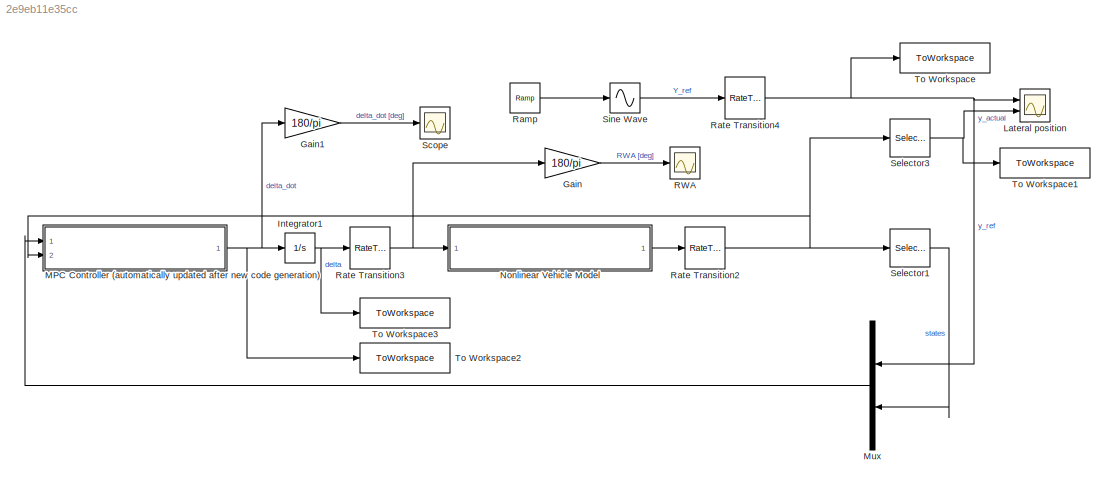
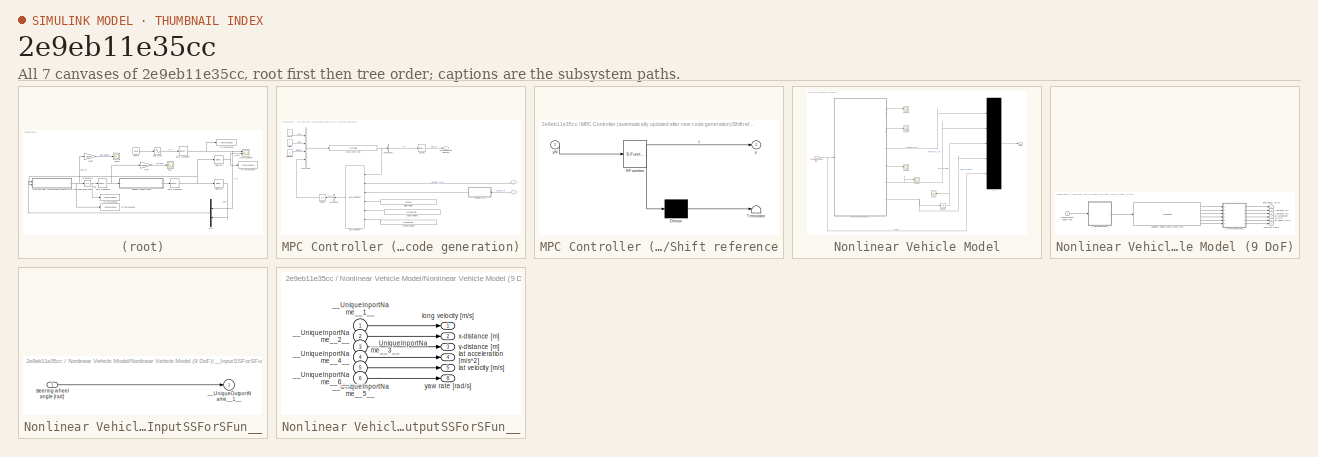
[diagram: thumbnail index - all 7 canvases of the model, root first then tree order]
MODEL slx_2e9eb11e35cc
KIND model
CONFIG AbsTol = auto
CONFIG EnableMultiTasking = off
CONFIG FixedStep = 1e-3
CONFIG MaxStep = auto
CONFIG MinStep = auto
CONFIG RelTol = 1e-3
CONFIG SampleTimeConstraint = Unconstrained
CONFIG Solver = ode4
CONFIG SolverName = ode4
CONFIG StartTime = 0.0
CONFIG StopTime = 30
BLOCK [Gain] Gain
  Gain = 180/pi
BLOCK [Gain] Gain1
  Gain = 180/pi
BLOCK [Integrator] Integrator1
  Ports = [1, 1]
BLOCK [Scope] Lateral position
  Floating = off
  NumInputPorts = 2
  Ports = [2]
  ScopeSpecificationString = Simulink.scopes.TimeScopeBlockCfg('CurrentConfiguration', extmgr.ConfigurationSet(extmgr.Configuration('Core','General UI',true),extmgr.Configuration('Core','Source UI',true),extmgr.Configuration('Sources','WiredSimulink',true,'DataLoggingVariableName','yref_vs_yactual','DataLogging',true),extmgr.Configuration('Visuals','Time Domain',true,'SerializedDisplays',{struct('MinYLimReal','-1.26772','MaxY...<+1570ch>
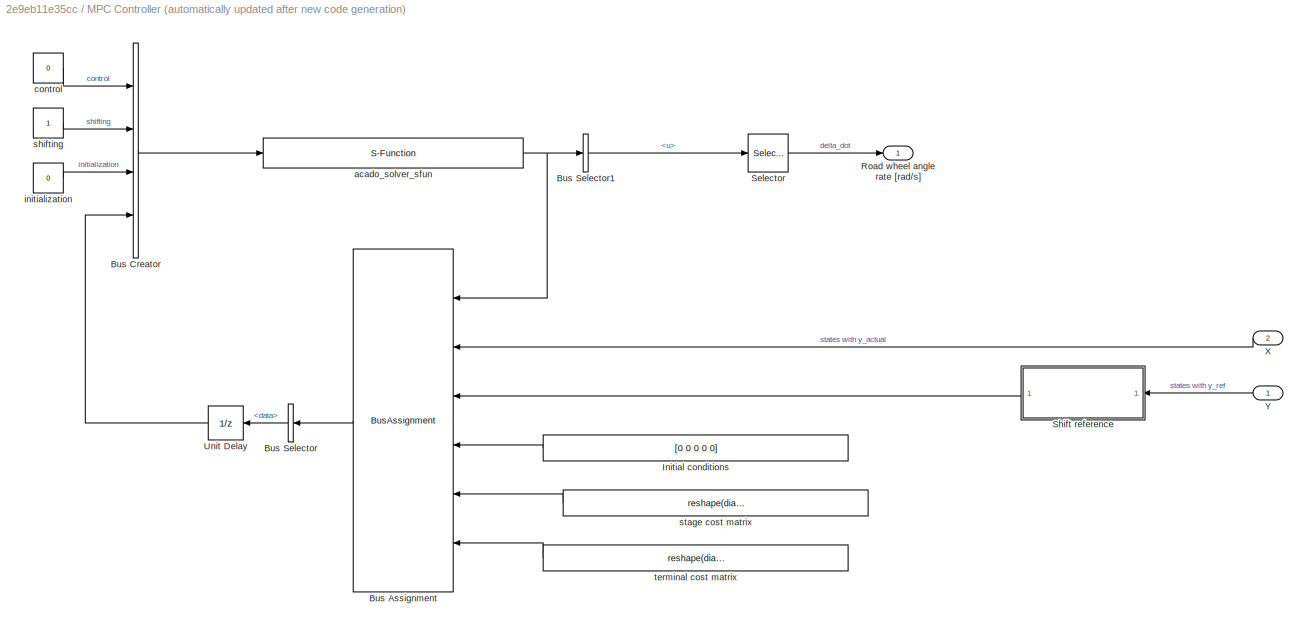
BLOCK [SubSystem] MPC Controller (automatically updated after new code generation)
  Ports = [2, 1]
  RequestExecContextInheritance = off
BLOCK [BusAssignment] MPC Controller (automatically updated after new code generation)/Bus Assignment
  AssignedSignals = data.x0,data.y,data.yN,data.W,data.WN
  Ports = [6, 1]
BLOCK [BusCreator] MPC Controller (automatically updated after new code generation)/Bus Creator
  DisplayOption = bar
  InheritFromInputs = on
  Inputs = 4
  OutDataTypeStr = Bus: ACADOinput
  Ports = [4, 1]
BLOCK [BusSelector] MPC Controller (automatically updated after new code generation)/Bus Selector
  OutputSignals = data
  Ports = [1, 1]
BLOCK [BusSelector] MPC Controller (automatically updated after new code generation)/Bus Selector1
  OutputSignals = data.u
  Ports = [1, 1]
BLOCK [Constant] MPC Controller (automatically updated after new code generation)/Initial conditions
  Value = [0 0 0 0 0]
BLOCK [Outport] MPC Controller (automatically updated after new code generation)/Road wheel angle rate [rad//s]
BLOCK [Selector] MPC Controller (automatically updated after new code generation)/Selector
  IndexOptions = Starting index (dialog)
  Indices = [1]
  InputPortWidth = Np
  OutputSizes = 1
  Ports = [1, 1]
BLOCK [SubSystem] MPC Controller (automatically updated after new code generation)/Shift reference
  ErrorFcn = Stateflow.Translate.translate
  PermitHierarchicalResolution = ExplicitOnly
  Ports = [1, 1]
  RequestExecContextInheritance = off
  SFBlockType = MATLAB Function
  TreatAsAtomicUnit = on
BLOCK [Demux] MPC Controller (automatically updated after new code generation)/Shift reference/ Demux 
  Outputs = 1
  Ports = [1, 1]
BLOCK [S-Function] MPC Controller (automatically updated after new code generation)/Shift reference/ SFunction 
  EnableBusSupport = on
  FunctionName = sf_sfun
  Parameters = Np
  PortCounts = [1 2]
  Ports = [1, 2]
  SFcnIsStateOwnerBlock = off
  SFunctionDeploymentMode = off
  Tag = Stateflow S-Function 2
BLOCK [Terminator] MPC Controller (automatically updated after new code generation)/Shift reference/ Terminator 
BLOCK [Outport] MPC Controller (automatically updated after new code generation)/Shift reference/y
  VectorParamsAs1DForOutWhenUnconnected = off
BLOCK [Inport] MPC Controller (automatically updated after new code generation)/Shift reference/yN
BLOCK [UnitDelay] MPC Controller (automatically updated after new code generation)/Unit Delay
  HasFrameUpgradeWarning = on
  InitialCondition = init
  SampleTime = Ts
BLOCK [Inport] MPC Controller (automatically updated after new code generation)/X
  Port = 2
BLOCK [Inport] MPC Controller (automatically updated after new code generation)/Y
BLOCK [S-Function] MPC Controller (automatically updated after new code generation)/acado_solver_sfun
  EnableBusSupport = off
  FunctionName = acado_solver_sfun
  Ports = [1, 1]
  SFcnIsStateOwnerBlock = off
  SFunctionDeploymentMode = off
BLOCK [Constant] MPC Controller (automatically updated after new code generation)/control
  OutDataTypeStr = int32
  Value = 0
BLOCK [Constant] MPC Controller (automatically updated after new code generation)/initialization
  OutDataTypeStr = int32
  Value = 0
BLOCK [Constant] MPC Controller (automatically updated after new code generation)/shifting
  OutDataTypeStr = int32
BLOCK [Constant] MPC Controller (automatically updated after new code generation)/stage cost matrix
  Value = reshape(diag([1.5 0 9 0 0.02 0.0001]),1,length(input.W)^2)
BLOCK [Constant] MPC Controller (automatically updated after new code generation)/terminal cost matrix
  Value = reshape(diag([0 0 0 0 0]),1,length(input.WN)^2)
BLOCK [Mux] Mux
  DisplayOption = bar
  Inputs = 2
  Ports = [2, 1]
BLOCK [SubSystem] Nonlinear Vehicle Model
  Ports = [1, 1]
  RequestExecContextInheritance = off
BLOCK [Integrator] Nonlinear Vehicle Model/Integrator
  Ports = [1, 1]
BLOCK [Mux] Nonlinear Vehicle Model/Mux
  DisplayOption = signals
  Inputs = 5
  Ports = [5, 1]
BLOCK [SubSystem] Nonlinear Vehicle Model/Nonlinear Vehicle Model (9 DoF)
  Ports = [1, 6]
  RequestExecContextInheritance = off
BLOCK [S-Function] Nonlinear Vehicle Model/Nonlinear Vehicle Model (9 DoF)/Nonlinear Vehicle Model (9 DoF)_sfcn
  CopyFcn = if ~strcmp(get_param(gcb,'Linkstatus'),'none') && ...\n~strcmp(get_param(gcb,'Linkstatus'),'implicit')      \n  set_param(gcb,'LinkStatus','none');                \nend
  EnableBusSupport = off
  FunctionName = Nonlinear_sf
  Ports = [1, 6]
  SFcnIsStateOwnerBlock = off
  SFunctionDeploymentMode = off
BLOCK [SubSystem] Nonlinear Vehicle Model/Nonlinear Vehicle Model (9 DoF)/__InputSSForSFun__
  PermitHierarchicalResolution = ExplicitOnly
  Ports = [1, 1]
  RequestExecContextInheritance = off
BLOCK [Outport] Nonlinear Vehicle Model/Nonlinear Vehicle Model (9 DoF)/__InputSSForSFun__/__UniqueOutportName__1__
BLOCK [Inport] Nonlinear Vehicle Model/Nonlinear Vehicle Model (9 DoF)/__InputSSForSFun__/steering wheel angle [rad]
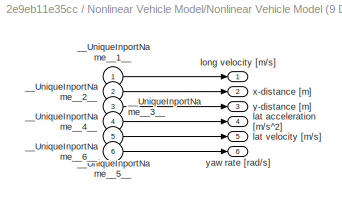
BLOCK [SubSystem] Nonlinear Vehicle Model/Nonlinear Vehicle Model (9 DoF)/__OutputSSForSFun__
  PermitHierarchicalResolution = ExplicitOnly
  Ports = [6, 6]
  RequestExecContextInheritance = off
BLOCK [Inport] Nonlinear Vehicle Model/Nonlinear Vehicle Model (9 DoF)/__OutputSSForSFun__/__UniqueInportName__1__
BLOCK [Inport] Nonlinear Vehicle Model/Nonlinear Vehicle Model (9 DoF)/__OutputSSForSFun__/__UniqueInportName__2__
  Port = 2
BLOCK [Inport] Nonlinear Vehicle Model/Nonlinear Vehicle Model (9 DoF)/__OutputSSForSFun__/__UniqueInportName__3__
  Port = 3
BLOCK [Inport] Nonlinear Vehicle Model/Nonlinear Vehicle Model (9 DoF)/__OutputSSForSFun__/__UniqueInportName__4__
  Port = 4
BLOCK [Inport] Nonlinear Vehicle Model/Nonlinear Vehicle Model (9 DoF)/__OutputSSForSFun__/__UniqueInportName__5__
  Port = 5
BLOCK [Inport] Nonlinear Vehicle Model/Nonlinear Vehicle Model (9 DoF)/__OutputSSForSFun__/__UniqueInportName__6__
  Port = 6
BLOCK [Outport] Nonlinear Vehicle Model/Nonlinear Vehicle Model (9 DoF)/__OutputSSForSFun__/lat acceleration [m//s^2]
  Port = 4
  VectorParamsAs1DForOutWhenUnconnected = off
BLOCK [Outport] Nonlinear Vehicle Model/Nonlinear Vehicle Model (9 DoF)/__OutputSSForSFun__/lat velocity [m//s]
  Port = 5
  VectorParamsAs1DForOutWhenUnconnected = off
BLOCK [Outport] Nonlinear Vehicle Model/Nonlinear Vehicle Model (9 DoF)/__OutputSSForSFun__/long velocity [m//s]
  VectorParamsAs1DForOutWhenUnconnected = off
BLOCK [Outport] Nonlinear Vehicle Model/Nonlinear Vehicle Model (9 DoF)/__OutputSSForSFun__/x-distance [m]
  Port = 2
  VectorParamsAs1DForOutWhenUnconnected = off
BLOCK [Outport] Nonlinear Vehicle Model/Nonlinear Vehicle Model (9 DoF)/__OutputSSForSFun__/y-distance [m]
  Port = 3
  VectorParamsAs1DForOutWhenUnconnected = off
BLOCK [Outport] Nonlinear Vehicle Model/Nonlinear Vehicle Model (9 DoF)/__OutputSSForSFun__/yaw rate [rad//s]
  Port = 6
  VectorParamsAs1DForOutWhenUnconnected = off
BLOCK [Outport] Nonlinear Vehicle Model/Nonlinear Vehicle Model (9 DoF)/lat acceleration [m//s^2]
  Port = 4
  VectorParamsAs1DForOutWhenUnconnected = off
BLOCK [Outport] Nonlinear Vehicle Model/Nonlinear Vehicle Model (9 DoF)/lat velocity [m//s]
  Port = 5
  VectorParamsAs1DForOutWhenUnconnected = off
BLOCK [Outport] Nonlinear Vehicle Model/Nonlinear Vehicle Model (9 DoF)/long velocity [m//s]
  VectorParamsAs1DForOutWhenUnconnected = off
BLOCK [Inport] Nonlinear Vehicle Model/Nonlinear Vehicle Model (9 DoF)/steering wheel angle [rad]
BLOCK [Outport] Nonlinear Vehicle Model/Nonlinear Vehicle Model (9 DoF)/x-distance [m]
  Port = 2
  VectorParamsAs1DForOutWhenUnconnected = off
BLOCK [Outport] Nonlinear Vehicle Model/Nonlinear Vehicle Model (9 DoF)/y-distance [m]
  Port = 3
  VectorParamsAs1DForOutWhenUnconnected = off
BLOCK [Outport] Nonlinear Vehicle Model/Nonlinear Vehicle Model (9 DoF)/yaw rate [rad//s]
  Port = 6
  VectorParamsAs1DForOutWhenUnconnected = off
BLOCK [Inport] Nonlinear Vehicle Model/Road wheel angle [rad]
BLOCK [Scope] Nonlinear Vehicle Model/Scope
  Floating = off
  NumInputPorts = 1
  Ports = [1]
  ScopeSpecificationString = Simulink.scopes.TimeScopeBlockCfg('CurrentConfiguration', extmgr.ConfigurationSet(extmgr.Configuration('Core','General UI',true),extmgr.Configuration('Core','Source UI',true),extmgr.Configuration('Sources','WiredSimulink',true,'DataLoggingVariableName','ScopeData1'),extmgr.Configuration('Visuals','Time Domain',true,'SerializedDisplays',{struct('MinYLimReal','-0.1412','MaxYLimReal','0.13683','YLabe...<+1407ch>
BLOCK [Scope] Nonlinear Vehicle Model/Scope1
  Floating = off
  NumInputPorts = 1
  Ports = [1]
  ScopeSpecificationString = Simulink.scopes.TimeScopeBlockCfg('CurrentConfiguration', extmgr.ConfigurationSet(extmgr.Configuration('Core','General UI',true),extmgr.Configuration('Core','Source UI',true),extmgr.Configuration('Sources','WiredSimulink',true,'DataLoggingVariableName','long_Vx','DataLogging',true),extmgr.Configuration('Visuals','Time Domain',true,'SerializedDisplays',{struct('MinYLimReal','27.47243','MaxYLimReal'...<+1507ch>
BLOCK [Scope] Nonlinear Vehicle Model/Scope2
  Floating = off
  NumInputPorts = 1
  Ports = [1]
  ScopeSpecificationString = Simulink.scopes.TimeScopeBlockCfg('CurrentConfiguration', extmgr.ConfigurationSet(extmgr.Configuration('Core','General UI',true),extmgr.Configuration('Core','Source UI',true),extmgr.Configuration('Sources','WiredSimulink',true,'DataLoggingVariableName','ScopeData2'),extmgr.Configuration('Visuals','Time Domain',true,'SerializedDisplays',{struct('MinYLimReal','-6.46577','MaxYLimReal','6.36238','YLab...<+1392ch>
BLOCK [Scope] Nonlinear Vehicle Model/Scope3
  Floating = off
  NumInputPorts = 1
  Ports = [1]
  ScopeSpecificationString = Simulink.scopes.TimeScopeBlockCfg('CurrentConfiguration', extmgr.ConfigurationSet(extmgr.Configuration('Core','General UI',true),extmgr.Configuration('Core','Source UI',true),extmgr.Configuration('Sources','WiredSimulink',true,'DataLoggingVariableName','ScopeData1'),extmgr.Configuration('Visuals','Time Domain',true),extmgr.Configuration('Tools','Plot Navigation',true),extmgr.Configuration('Tools',...<+40ch>
BLOCK [Scope] Nonlinear Vehicle Model/Scope5
  Floating = off
  NumInputPorts = 1
  Ports = [1]
  ScopeSpecificationString = Simulink.scopes.TimeScopeBlockCfg('CurrentConfiguration', extmgr.ConfigurationSet(extmgr.Configuration('Core','General UI',true),extmgr.Configuration('Core','Source UI',true),extmgr.Configuration('Sources','WiredSimulink',true,'DataLoggingVariableName','ScopeData4'),extmgr.Configuration('Visuals','Time Domain',true,'SerializedDisplays',{struct('MinYLimReal','-1.84108','MaxYLimReal','2.54987','YLab...<+1447ch>
BLOCK [Outport] Nonlinear Vehicle Model/states
  VectorParamsAs1DForOutWhenUnconnected = off
BLOCK [Scope] RWA
  Floating = off
  NumInputPorts = 1
  Ports = [1]
  ScopeSpecificationString = Simulink.scopes.TimeScopeBlockCfg('CurrentConfiguration', extmgr.ConfigurationSet(extmgr.Configuration('Core','General UI',true),extmgr.Configuration('Core','Source UI',true),extmgr.Configuration('Sources','WiredSimulink',true,'DataLoggingVariableName','delta_RWA','DataLogging',true),extmgr.Configuration('Visuals','Time Domain',true,'SerializedDisplays',{struct('MinYLimReal','-5.18673','MaxYLimRea...<+1550ch>
BLOCK [Reference] Ramp  REF=simulink/Sources/Ramp
  Ports = [0, 1]
  SourceBlock = simulink/Sources/Ramp
  SourceProductBaseCode = SL
  SourceType = Ramp
BLOCK [RateTransition] Rate Transition2
  OutPortSampleTime = Ts
BLOCK [RateTransition] Rate Transition3
BLOCK [RateTransition] Rate Transition4
  OutPortSampleTime = Ts
BLOCK [Scope] Scope
  Floating = off
  NumInputPorts = 1
  Ports = [1]
  ScopeSpecificationString = Simulink.scopes.TimeScopeBlockCfg('CurrentConfiguration', extmgr.ConfigurationSet(extmgr.Configuration('Core','General UI',true),extmgr.Configuration('Core','Source UI',true),extmgr.Configuration('Sources','WiredSimulink',true,'DataLoggingVariableName','SWA_dot','DataLogging',true),extmgr.Configuration('Visuals','Time Domain',true,'SerializedDisplays',{struct('MinYLimReal','-64.93506','MaxYLimReal...<+1396ch>
BLOCK [Selector] Selector1
  IndexOptions = Index vector (dialog)
  Indices = [2:5]
  InputPortWidth = 5
  OutputSizes = 1
  Ports = [1, 1]
BLOCK [Selector] Selector3
  IndexOptions = Index vector (dialog)
  Indices = 1
  InputPortWidth = 5
  OutputSizes = 1
  Ports = [1, 1]
BLOCK [Sin] Sine Wave
  Frequency = 2*pi*0.2
  Ports = [1, 1]
  SampleTime = 0
  TimeSource = Use external signal
BLOCK [ToWorkspace] To Workspace
  FixptAsFi = on
  MaxDataPoints = inf
  Ports = [1]
  SampleTime = -1
  SaveFormat = Timeseries
  VariableName = simout
BLOCK [ToWorkspace] To Workspace1
  FixptAsFi = on
  MaxDataPoints = inf
  Ports = [1]
  SampleTime = -1
  SaveFormat = Timeseries
  VariableName = simout1
BLOCK [ToWorkspace] To Workspace2
  FixptAsFi = on
  MaxDataPoints = inf
  Ports = [1]
  SampleTime = -1
  SaveFormat = Timeseries
  VariableName = dd1
BLOCK [ToWorkspace] To Workspace3
  FixptAsFi = on
  MaxDataPoints = inf
  Ports = [1]
  SampleTime = -1
  SaveFormat = Timeseries
  VariableName = d1
LINE Gain1:1 -> Scope:1
LINE Gain:1 -> RWA:1
NET Integrator1:1 -> Rate Transition3:1, To Workspace3:1
LINE MPC Controller (automatically updated after new code generation)/Bus Assignment:1 -> MPC Controller (automatically updated after new code generation)/Bus Selector:1
LINE MPC Controller (automatically updated after new code generation)/Bus Creator:1 -> MPC Controller (automatically updated after new code generation)/acado_solver_sfun:1
LINE MPC Controller (automatically updated after new code generation)/Bus Selector1:1 -> MPC Controller (automatically updated after new code generation)/Selector:1
LINE MPC Controller (automatically updated after new code generation)/Bus Selector:1 -> MPC Controller (automatically updated after new code generation)/Unit Delay:1
LINE MPC Controller (automatically updated after new code generation)/Initial conditions:1 -> MPC Controller (automatically updated after new code generation)/Bus Assignment:4
LINE MPC Controller (automatically updated after new code generation)/Selector:1 -> MPC Controller (automatically updated after new code generation)/Road wheel angle rate [rad//s]:1
LINE MPC Controller (automatically updated after new code generation)/Shift reference:1 -> MPC Controller (automatically updated after new code generation)/Bus Assignment:3
LINE MPC Controller (automatically updated after new code generation)/Unit Delay:1 -> MPC Controller (automatically updated after new code generation)/Bus Creator:4
LINE MPC Controller (automatically updated after new code generation)/X:1 -> MPC Controller (automatically updated after new code generation)/Bus Assignment:2
LINE MPC Controller (automatically updated after new code generation)/Y:1 -> MPC Controller (automatically updated after new code generation)/Shift reference:1
NET MPC Controller (automatically updated after new code generation)/acado_solver_sfun:1 -> MPC Controller (automatically updated after new code generation)/Bus Assignment:1, MPC Controller (automatically updated after new code generation)/Bus Selector1:1
LINE MPC Controller (automatically updated after new code generation)/control:1 -> MPC Controller (automatically updated after new code generation)/Bus Creator:1
LINE MPC Controller (automatically updated after new code generation)/initialization:1 -> MPC Controller (automatically updated after new code generation)/Bus Creator:3
LINE MPC Controller (automatically updated after new code generation)/shifting:1 -> MPC Controller (automatically updated after new code generation)/Bus Creator:2
LINE MPC Controller (automatically updated after new code generation)/stage cost matrix:1 -> MPC Controller (automatically updated after new code generation)/Bus Assignment:5
LINE MPC Controller (automatically updated after new code generation)/terminal cost matrix:1 -> MPC Controller (automatically updated after new code generation)/Bus Assignment:6
NET MPC Controller (automatically updated after new code generation):1 -> Gain1:1, Integrator1:1, To Workspace2:1
LINE Mux:1 -> MPC Controller (automatically updated after new code generation):1
NET Nonlinear Vehicle Model/Integrator:1 -> Nonlinear Vehicle Model/Mux:3, Nonlinear Vehicle Model/Scope:1
LINE Nonlinear Vehicle Model/Mux:1 -> Nonlinear Vehicle Model/states:1
LINE Nonlinear Vehicle Model/Nonlinear Vehicle Model (9 DoF)/Nonlinear Vehicle Model (9 DoF)_sfcn:1 -> Nonlinear Vehicle Model/Nonlinear Vehicle Model (9 DoF)/__OutputSSForSFun__:1
LINE Nonlinear Vehicle Model/Nonlinear Vehicle Model (9 DoF)/Nonlinear Vehicle Model (9 DoF)_sfcn:2 -> Nonlinear Vehicle Model/Nonlinear Vehicle Model (9 DoF)/__OutputSSForSFun__:2
LINE Nonlinear Vehicle Model/Nonlinear Vehicle Model (9 DoF)/Nonlinear Vehicle Model (9 DoF)_sfcn:3 -> Nonlinear Vehicle Model/Nonlinear Vehicle Model (9 DoF)/__OutputSSForSFun__:3
LINE Nonlinear Vehicle Model/Nonlinear Vehicle Model (9 DoF)/Nonlinear Vehicle Model (9 DoF)_sfcn:4 -> Nonlinear Vehicle Model/Nonlinear Vehicle Model (9 DoF)/__OutputSSForSFun__:4
LINE Nonlinear Vehicle Model/Nonlinear Vehicle Model (9 DoF)/Nonlinear Vehicle Model (9 DoF)_sfcn:5 -> Nonlinear Vehicle Model/Nonlinear Vehicle Model (9 DoF)/__OutputSSForSFun__:5
LINE Nonlinear Vehicle Model/Nonlinear Vehicle Model (9 DoF)/Nonlinear Vehicle Model (9 DoF)_sfcn:6 -> Nonlinear Vehicle Model/Nonlinear Vehicle Model (9 DoF)/__OutputSSForSFun__:6
LINE Nonlinear Vehicle Model/Nonlinear Vehicle Model (9 DoF)/__InputSSForSFun__/steering wheel angle [rad]:1 -> Nonlinear Vehicle Model/Nonlinear Vehicle Model (9 DoF)/__InputSSForSFun__/__UniqueOutportName__1__:1
LINE Nonlinear Vehicle Model/Nonlinear Vehicle Model (9 DoF)/__InputSSForSFun__:1 -> Nonlinear Vehicle Model/Nonlinear Vehicle Model (9 DoF)/Nonlinear Vehicle Model (9 DoF)_sfcn:1
LINE Nonlinear Vehicle Model/Nonlinear Vehicle Model (9 DoF)/__OutputSSForSFun__/__UniqueInportName__1__:1 -> Nonlinear Vehicle Model/Nonlinear Vehicle Model (9 DoF)/__OutputSSForSFun__/long velocity [m//s]:1
LINE Nonlinear Vehicle Model/Nonlinear Vehicle Model (9 DoF)/__OutputSSForSFun__/__UniqueInportName__2__:1 -> Nonlinear Vehicle Model/Nonlinear Vehicle Model (9 DoF)/__OutputSSForSFun__/x-distance [m]:1
LINE Nonlinear Vehicle Model/Nonlinear Vehicle Model (9 DoF)/__OutputSSForSFun__/__UniqueInportName__3__:1 -> Nonlinear Vehicle Model/Nonlinear Vehicle Model (9 DoF)/__OutputSSForSFun__/y-distance [m]:1
LINE Nonlinear Vehicle Model/Nonlinear Vehicle Model (9 DoF)/__OutputSSForSFun__/__UniqueInportName__4__:1 -> Nonlinear Vehicle Model/Nonlinear Vehicle Model (9 DoF)/__OutputSSForSFun__/lat acceleration [m//s^2]:1
LINE Nonlinear Vehicle Model/Nonlinear Vehicle Model (9 DoF)/__OutputSSForSFun__/__UniqueInportName__5__:1 -> Nonlinear Vehicle Model/Nonlinear Vehicle Model (9 DoF)/__OutputSSForSFun__/lat velocity [m//s]:1
LINE Nonlinear Vehicle Model/Nonlinear Vehicle Model (9 DoF)/__OutputSSForSFun__/__UniqueInportName__6__:1 -> Nonlinear Vehicle Model/Nonlinear Vehicle Model (9 DoF)/__OutputSSForSFun__/yaw rate [rad//s]:1
LINE Nonlinear Vehicle Model/Nonlinear Vehicle Model (9 DoF)/__OutputSSForSFun__:1 -> Nonlinear Vehicle Model/Nonlinear Vehicle Model (9 DoF)/long velocity [m//s]:1
LINE Nonlinear Vehicle Model/Nonlinear Vehicle Model (9 DoF)/__OutputSSForSFun__:2 -> Nonlinear Vehicle Model/Nonlinear Vehicle Model (9 DoF)/x-distance [m]:1
LINE Nonlinear Vehicle Model/Nonlinear Vehicle Model (9 DoF)/__OutputSSForSFun__:3 -> Nonlinear Vehicle Model/Nonlinear Vehicle Model (9 DoF)/y-distance [m]:1
LINE Nonlinear Vehicle Model/Nonlinear Vehicle Model (9 DoF)/__OutputSSForSFun__:4 -> Nonlinear Vehicle Model/Nonlinear Vehicle Model (9 DoF)/lat acceleration [m//s^2]:1
LINE Nonlinear Vehicle Model/Nonlinear Vehicle Model (9 DoF)/__OutputSSForSFun__:5 -> Nonlinear Vehicle Model/Nonlinear Vehicle Model (9 DoF)/lat velocity [m//s]:1
LINE Nonlinear Vehicle Model/Nonlinear Vehicle Model (9 DoF)/__OutputSSForSFun__:6 -> Nonlinear Vehicle Model/Nonlinear Vehicle Model (9 DoF)/yaw rate [rad//s]:1
LINE Nonlinear Vehicle Model/Nonlinear Vehicle Model (9 DoF)/steering wheel angle [rad]:1 -> Nonlinear Vehicle Model/Nonlinear Vehicle Model (9 DoF)/__InputSSForSFun__:1
LINE Nonlinear Vehicle Model/Nonlinear Vehicle Model (9 DoF):1 -> Nonlinear Vehicle Model/Scope1:1
LINE Nonlinear Vehicle Model/Nonlinear Vehicle Model (9 DoF):2 -> Nonlinear Vehicle Model/Scope3:1
LINE Nonlinear Vehicle Model/Nonlinear Vehicle Model (9 DoF):3 -> Nonlinear Vehicle Model/Mux:1
LINE Nonlinear Vehicle Model/Nonlinear Vehicle Model (9 DoF):4 -> Nonlinear Vehicle Model/Scope2:1
NET Nonlinear Vehicle Model/Nonlinear Vehicle Model (9 DoF):5 -> Nonlinear Vehicle Model/Mux:2, Nonlinear Vehicle Model/Scope5:1
NET Nonlinear Vehicle Model/Nonlinear Vehicle Model (9 DoF):6 -> Nonlinear Vehicle Model/Integrator:1, Nonlinear Vehicle Model/Mux:4
NET Nonlinear Vehicle Model/Road wheel angle [rad]:1 -> Nonlinear Vehicle Model/Mux:5, Nonlinear Vehicle Model/Nonlinear Vehicle Model (9 DoF):1
LINE Nonlinear Vehicle Model:1 -> Rate Transition2:1
LINE Ramp:1 -> Sine Wave:1
NET Rate Transition2:1 -> MPC Controller (automatically updated after new code generation):2, Selector1:1, Selector3:1
NET Rate Transition3:1 -> Gain:1, Nonlinear Vehicle Model:1
NET Rate Transition4:1 -> Lateral position:1, Mux:1, To Workspace:1
LINE Selector1:1 -> Mux:2
NET Selector3:1 -> Lateral position:2, To Workspace1:1
LINE Sine Wave:1 -> Rate Transition4:1
note: NET lines group one-source signal fan-out (src -> all destinations, sorted); 1:1 wires keep LINE
CHART MPC Controller 
(automatically updated after new code generation)/Shift reference states=1 transitions=1
  STATE_LABEL 'eML_blk_kernel()'
  STATE_LABEL "SCRIPT:\nfunction y = shift_reference(yN,Np)\n\ny=repmat([yN;0],Np,1)';\n\nend\n"
CHART  states=0 transitions=0
